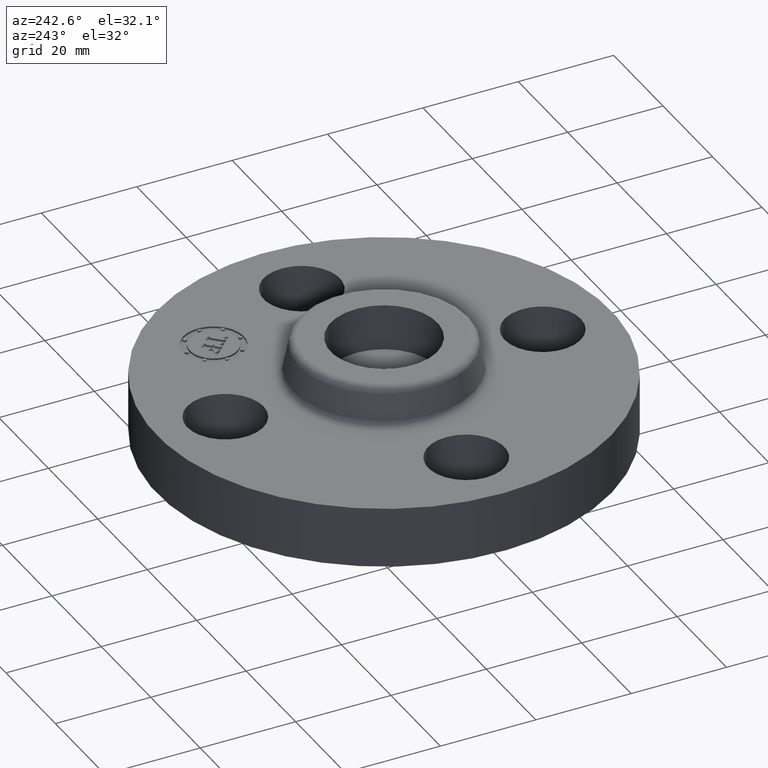
[diagram: clean part render]
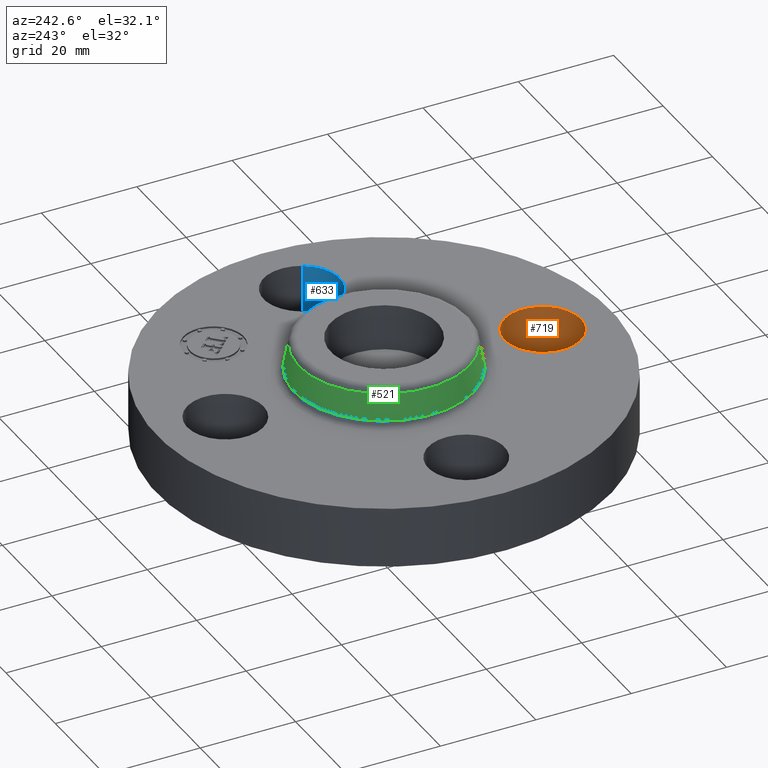
[diagram: same view with three faces highlighted in distinct colors, each labeled with its STEP entity id]
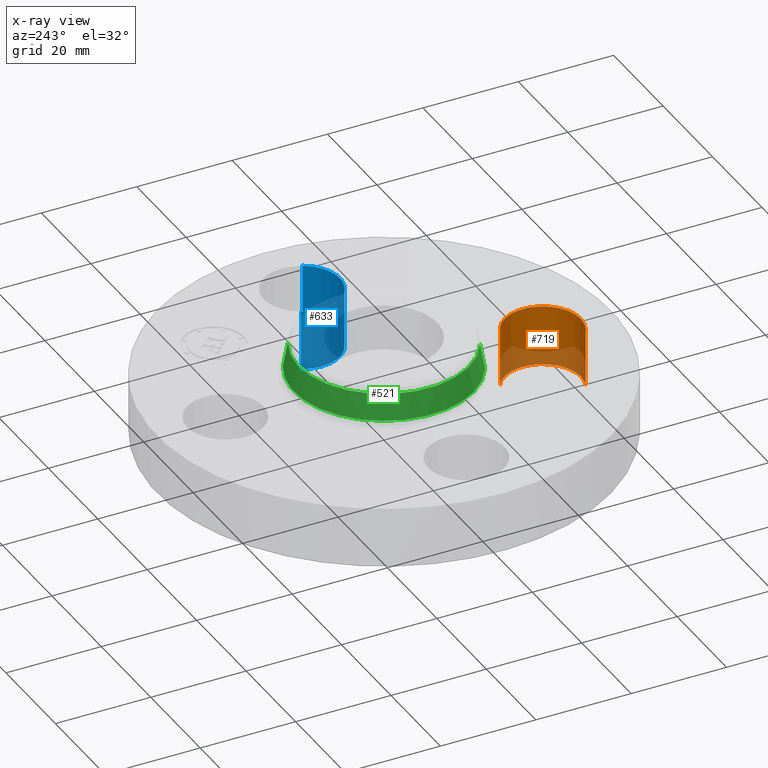
[diagram: x-ray of the same camera — body ghosted, the three highlighted faces saturated]
A machine part, auxiliary view with three faces highlighted in distinct colors.
The next image is the same camera in x-ray (body ghosted, the three faces saturated) — at least one of them is partly hidden behind the body in this view.
Their STEP definitions:

[orange] entity #719 — the highlighted cylindrical surface (partial cylindrical patch) has radius 8.001 mm, axis along (0, 0, -1).
#407=AXIS2_PLACEMENT_3D('Circle Axis2P3D',#405,#406,$) ;
#680=AXIS2_PLACEMENT_3D('Cylinder Axis2P3D',#677,#678,#679) ;
#405=CARTESIAN_POINT('Axis2P3D Location',(-1.28118338336E-011,-1.30999999998,0.)) ;
#409=CARTESIAN_POINT('Vertex',(0.151019044675,-1.03356149299,0.)) ;
#411=CARTESIAN_POINT('Vertex',(-0.151019044675,-1.58643850699,0.)) ;
#677=CARTESIAN_POINT('Axis2P3D Location',(-1.99526869207E-016,-1.31000000001,0.496062992128)) ;
#682=CARTESIAN_POINT('Line Origine',(0.151019044661,-1.03356149301,0.250000000001)) ;
#686=CARTESIAN_POINT('Vertex',(0.151019044659,-1.03356149301,0.499999999987)) ;
#689=CARTESIAN_POINT('Line Origine',(-0.151019044661,-1.58643850701,0.250000000001)) ;
#693=CARTESIAN_POINT('Vertex',(-0.151019044661,-1.58643850701,0.499999999987)) ;
#697=CARTESIAN_POINT('Control Point',(0.151019044659,-1.03356149301,0.499999999987)) ;
#698=CARTESIAN_POINT('Control Point',(0.194441903797,-1.05728350908,0.499999999988)) ;
#699=CARTESIAN_POINT('Control Point',(0.233206955973,-1.08953158359,0.499999999989)) ;
#700=CARTESIAN_POINT('Control Point',(0.265074533341,-1.12909312141,0.49999999999)) ;
#701=CARTESIAN_POINT('Control Point',(0.311580534084,-1.21857978084,0.499999999991)) ;
#702=CARTESIAN_POINT('Control Point',(0.320796932275,-1.31900750771,0.499999999992)) ;
#703=CARTESIAN_POINT('Control Point',(0.315356480668,-1.36951551943,0.499999999993)) ;
#704=CARTESIAN_POINT('Control Point',(0.284964565451,-1.46567685163,0.499999999995)) ;
#705=CARTESIAN_POINT('Control Point',(0.220468416417,-1.54320695598,0.499999999996)) ;
#706=CARTESIAN_POINT('Control Point',(0.180906878602,-1.57507453335,0.499999999997)) ;
#707=CARTESIAN_POINT('Control Point',(0.0914202191719,-1.62158053409,0.499999999998)) ;
#708=CARTESIAN_POINT('Control Point',(-0.0090075077032,-1.63079693228,0.5)) ;
#709=CARTESIAN_POINT('Control Point',(-0.0595155194239,-1.62535648068,0.500000000001)) ;
#710=CARTESIAN_POINT('Control Point',(-0.107596185523,-1.61016052307,0.500000000001)) ;
#711=CARTESIAN_POINT('Control Point',(-0.151019044661,-1.58643850701,0.500000000002)) ;
#406=DIRECTION('Axis2P3D Direction',(0.,0.,-0.0393700787402)) ;
#678=DIRECTION('Axis2P3D Direction',(0.,0.,-0.0393700787402)) ;
#679=DIRECTION('Axis2P3D XDirection',(0.0188750212047,0.0345504945627,0.)) ;
#683=DIRECTION('Vector Direction',(0.,0.,-0.0393700787402)) ;
#690=DIRECTION('Vector Direction',(0.,0.,-0.0393700787402)) ;
#684=VECTOR('Line Direction',#683,0.0393700787402) ;
#691=VECTOR('Line Direction',#690,0.0393700787402) ;
#714=ORIENTED_EDGE('',*,*,#688,.F.) ;
#715=ORIENTED_EDGE('',*,*,#413,.T.) ;
#716=ORIENTED_EDGE('',*,*,#695,.T.) ;
#717=ORIENTED_EDGE('',*,*,#712,.F.) ;
#719=ADVANCED_FACE('PartBody',(#718),#681,.F.) ;
#696=B_SPLINE_CURVE_WITH_KNOTS('',5,(#697,#698,#699,#700,#701,#702,#703,#704,#705,#706,#707,#708,#709,#710,#711),.UNSPECIFIED.,.F.,.U.,(6,3,3,3,6),(-12.5679414107,-6.28397070537,0.,6.28397070537,12.5679414107),.UNSPECIFIED.) ;
#408=CIRCLE('generated circle',#407,0.315000000013) ;
#681=CYLINDRICAL_SURFACE('generated cylinder',#680,0.315000000001) ;
#413=EDGE_CURVE('',#410,#412,#408,.T.) ;
#688=EDGE_CURVE('',#410,#687,#685,.F.) ;
#695=EDGE_CURVE('',#412,#694,#692,.F.) ;
#712=EDGE_CURVE('',#687,#694,#696,.T.) ;
#713=EDGE_LOOP('',(#714,#715,#716,#717)) ;
#718=FACE_OUTER_BOUND('',#713,.T.) ;
#685=LINE('Line',#682,#684) ;
#692=LINE('Line',#689,#691) ;
#410=VERTEX_POINT('',#409) ;
#412=VERTEX_POINT('',#411) ;
#687=VERTEX_POINT('',#686) ;
#694=VERTEX_POINT('',#693) ;

[blue] entity #633 — the highlighted cylindrical surface (partial cylindrical patch) has radius 8.001 mm, axis along (0, -0, -1).
#385=AXIS2_PLACEMENT_3D('Circle Axis2P3D',#383,#384,$) ;
#606=AXIS2_PLACEMENT_3D('Cylinder Axis2P3D',#603,#604,#605) ;
#624=AXIS2_PLACEMENT_3D('Circle Axis2P3D',#622,#623,$) ;
#383=CARTESIAN_POINT('Axis2P3D Location',(1.31000000001,-1.62477205793E-011,0.)) ;
#387=CARTESIAN_POINT('Vertex',(1.58643850697,-0.151019044691,0.)) ;
#389=CARTESIAN_POINT('Vertex',(1.03356149304,0.151019044659,0.)) ;
#603=CARTESIAN_POINT('Axis2P3D Location',(1.31000000001,0.,0.496062992128)) ;
#608=CARTESIAN_POINT('Line Origine',(1.58643850701,-0.151019044661,0.250000000002)) ;
#612=CARTESIAN_POINT('Vertex',(1.58643850697,-0.151019044665,0.500000000002)) ;
#615=CARTESIAN_POINT('Line Origine',(1.03356149301,0.151019044661,0.250000000002)) ;
#619=CARTESIAN_POINT('Vertex',(1.03356149301,0.151019044661,0.499999999987)) ;
#622=CARTESIAN_POINT('Axis2P3D Location',(1.31000000001,0.,0.499999999987)) ;
#384=DIRECTION('Axis2P3D Direction',(0.,0.,-0.0393700787402)) ;
#604=DIRECTION('Axis2P3D Direction',(0.,-0.,-0.0393700787402)) ;
#605=DIRECTION('Axis2P3D XDirection',(0.0345504945626,-0.0188750212049,0.)) ;
#609=DIRECTION('Vector Direction',(0.,0.,-0.0393700787402)) ;
#616=DIRECTION('Vector Direction',(0.,0.,-0.0393700787402)) ;
#623=DIRECTION('Axis2P3D Direction',(0.,-0.,-0.0393700787402)) ;
#610=VECTOR('Line Direction',#609,0.0393700787402) ;
#617=VECTOR('Line Direction',#616,0.0393700787402) ;
#628=ORIENTED_EDGE('',*,*,#614,.F.) ;
#629=ORIENTED_EDGE('',*,*,#391,.T.) ;
#630=ORIENTED_EDGE('',*,*,#621,.T.) ;
#631=ORIENTED_EDGE('',*,*,#626,.F.) ;
#633=ADVANCED_FACE('PartBody',(#632),#607,.F.) ;
#386=CIRCLE('generated circle',#385,0.314999999981) ;
#625=CIRCLE('generated circle',#624,0.315000000001) ;
#607=CYLINDRICAL_SURFACE('generated cylinder',#606,0.315000000001) ;
#391=EDGE_CURVE('',#388,#390,#386,.T.) ;
#614=EDGE_CURVE('',#388,#613,#611,.F.) ;
#621=EDGE_CURVE('',#390,#620,#618,.F.) ;
#626=EDGE_CURVE('',#613,#620,#625,.T.) ;
#627=EDGE_LOOP('',(#628,#629,#630,#631)) ;
#632=FACE_OUTER_BOUND('',#627,.T.) ;
#611=LINE('Line',#608,#610) ;
#618=LINE('Line',#615,#617) ;
#388=VERTEX_POINT('',#387) ;
#390=VERTEX_POINT('',#389) ;
#613=VERTEX_POINT('',#612) ;
#620=VERTEX_POINT('',#619) ;

[green] entity #521 — the highlighted conical surface has half-angle 10 deg.
#348=AXIS2_PLACEMENT_3D('Circle Axis2P3D',#346,#347,$) ;
#508=AXIS2_PLACEMENT_3D('Cone Axis2P3D',#505,#506,#507) ;
#512=AXIS2_PLACEMENT_3D('Circle Axis2P3D',#510,#511,$) ;
#312=CARTESIAN_POINT('Vertex',(0.337554471756,0.617889315958,0.760418890663)) ;
#314=CARTESIAN_POINT('Vertex',(-0.337554471756,-0.617889315958,0.760418890663)) ;
#346=CARTESIAN_POINT('Axis2P3D Location',(0.,0.,0.760418890663)) ;
#476=CARTESIAN_POINT('Vertex',(0.355377782268,0.65051466701,0.549581109342)) ;
#478=CARTESIAN_POINT('Vertex',(-0.355377782268,-0.65051466701,0.549581109342)) ;
#481=CARTESIAN_POINT('Line Origine',(0.346466127012,0.634201991484,0.655000000001)) ;
#486=CARTESIAN_POINT('Line Origine',(-0.346466127012,-0.634201991484,0.655000000001)) ;
#505=CARTESIAN_POINT('Axis2P3D Location',(0.,0.,0.760418890663)) ;
#510=CARTESIAN_POINT('Axis2P3D Location',(0.,0.,0.549581109342)) ;
#347=DIRECTION('Axis2P3D Direction',(-0.,0.,-0.0393700787402)) ;
#482=DIRECTION('Vector Direction',(0.00327761303565,0.00599963041827,-0.03877195878)) ;
#487=DIRECTION('Vector Direction',(-0.00327761303565,-0.00599963041827,-0.03877195878)) ;
#506=DIRECTION('Axis2P3D Direction',(0.,0.,-0.0393700787402)) ;
#507=DIRECTION('Axis2P3D XDirection',(-0.0188750212049,-0.0345504945626,0.)) ;
#511=DIRECTION('Axis2P3D Direction',(-0.,0.,-0.0393700787402)) ;
#483=VECTOR('Line Direction',#482,0.0393700787402) ;
#488=VECTOR('Line Direction',#487,0.0393700787402) ;
#516=ORIENTED_EDGE('',*,*,#514,.F.) ;
#517=ORIENTED_EDGE('',*,*,#490,.T.) ;
#518=ORIENTED_EDGE('',*,*,#350,.T.) ;
#519=ORIENTED_EDGE('',*,*,#485,.F.) ;
#521=ADVANCED_FACE('PartBody',(#520),#509,.T.) ;
#349=CIRCLE('generated circle',#348,0.704081123293) ;
#513=CIRCLE('generated circle',#512,0.741257512693) ;
#509=CONICAL_SURFACE('Cone',#508,0.704081123293,0.174532925199) ;
#350=EDGE_CURVE('',#315,#313,#349,.T.) ;
#485=EDGE_CURVE('',#477,#313,#484,.F.) ;
#490=EDGE_CURVE('',#479,#315,#489,.F.) ;
#514=EDGE_CURVE('',#479,#477,#513,.T.) ;
#515=EDGE_LOOP('',(#516,#517,#518,#519)) ;
#520=FACE_OUTER_BOUND('',#515,.T.) ;
#484=LINE('Line',#481,#483) ;
#489=LINE('Line',#486,#488) ;
#313=VERTEX_POINT('',#312) ;
#315=VERTEX_POINT('',#314) ;
#477=VERTEX_POINT('',#476) ;
#479=VERTEX_POINT('',#478) ;